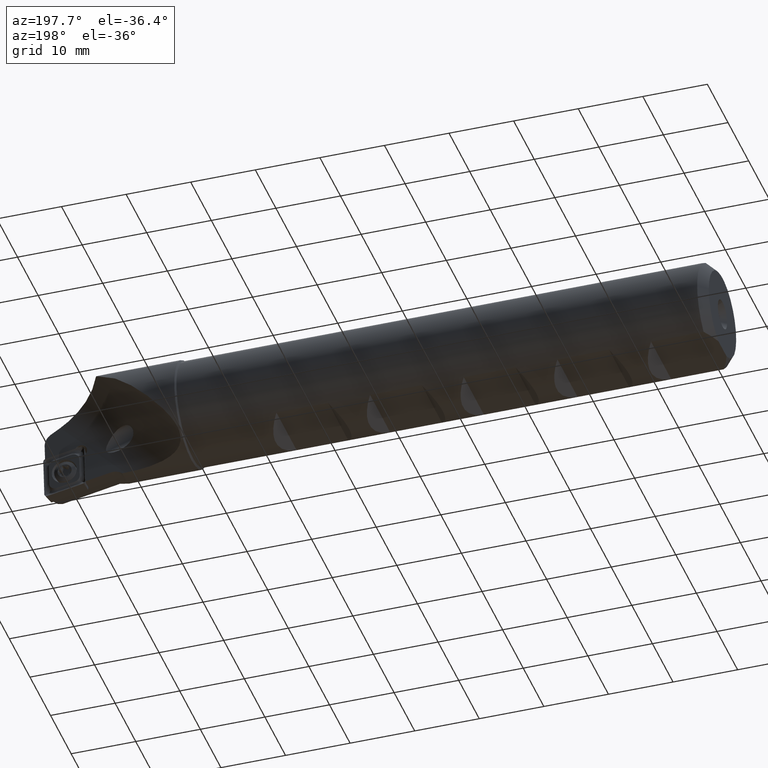
[diagram: clean part render]
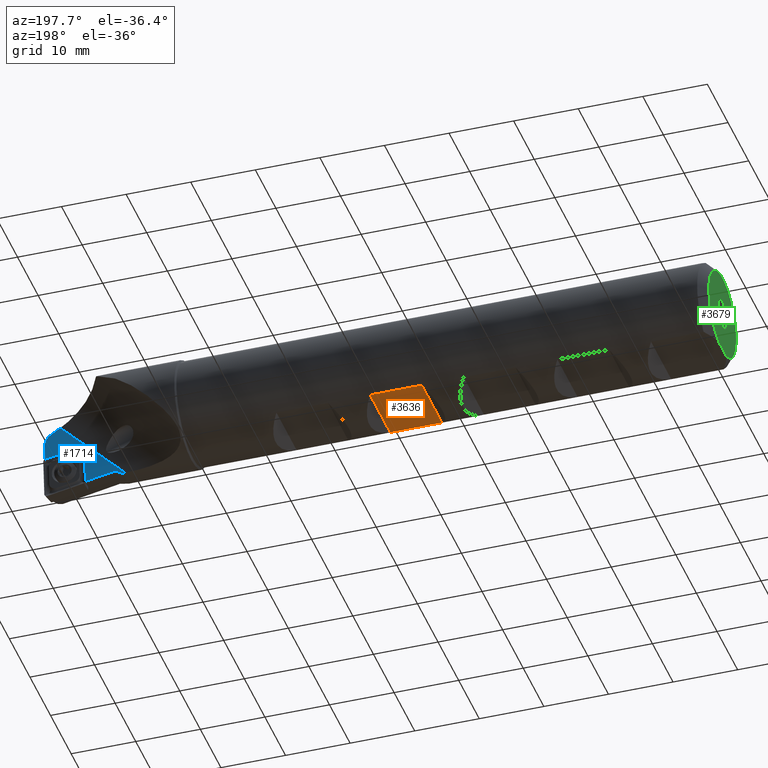
[diagram: same view with three faces highlighted in distinct colors, each labeled with its STEP entity id]
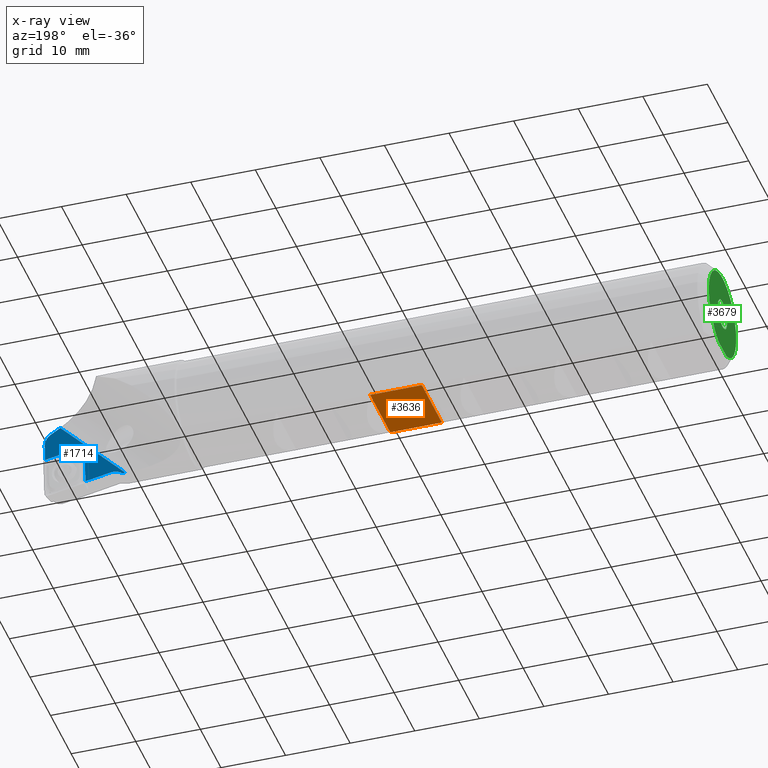
[diagram: x-ray of the same camera — body ghosted, the three highlighted faces saturated]
A machine part, auxiliary view with three faces highlighted in distinct colors.
The next image is the same camera in x-ray (body ghosted, the three faces saturated) — at least one of them is partly hidden behind the body in this view.
Their STEP definitions:

[orange] entity #3636 — the highlighted planar face has unit normal (-0, 0, 1).
#5 = DIRECTION ( 'NONE',  ( 1.000000000000000000, 8.847089727481710000E-017, 5.551115123125779000E-017 ) ) ;
#6 = CARTESIAN_POINT ( 'NONE',  ( -3.175455607189903200, 4.891942354525449200, -6.330000000000004500 ) ) ;
#19 = PLANE ( 'NONE',  #2520 ) ;
#23 = ORIENTED_EDGE ( 'NONE', *, *, #3186, .F. ) ;
#25 = VERTEX_POINT ( 'NONE', #2370 ) ;
#36 = ORIENTED_EDGE ( 'NONE', *, *, #534, .F. ) ;
#37 = CARTESIAN_POINT ( 'NONE',  ( 45.00000000000004300, -10.00000000000000400, -6.330000000000001800 ) ) ;
#87 = LINE ( 'NONE', #1352, #1269 ) ;
#142 = LINE ( 'NONE', #6, #2165 ) ;
#259 = CARTESIAN_POINT ( 'NONE',  ( 45.00000000000004300, -10.00000000000000400, -6.330000000000001800 ) ) ;
#408 = EDGE_CURVE ( 'NONE', #2882, #2448, #3175, .T. ) ;
#480 = CARTESIAN_POINT ( 'NONE',  ( -3.175455607189916900, -4.891942354525453700, -6.329999999999999200 ) ) ;
#525 = DIRECTION ( 'NONE',  ( 9.367506770274752100E-017, 1.000000000000000000, -2.341876692568688000E-017 ) ) ;
#534 = EDGE_CURVE ( 'NONE', #553, #2448, #142, .T. ) ;
#553 = VERTEX_POINT ( 'NONE', #2376 ) ;
#761 = DIRECTION ( 'NONE',  ( 1.000000000000000000, 8.847089727481710000E-017, 5.551115123125779000E-017 ) ) ;
#949 = VECTOR ( 'NONE', #761, 1000.000000000000000 ) ;
#1054 = CARTESIAN_POINT ( 'NONE',  ( 45.00000000000002800, 4.891942354525459900, -6.330000000000001800 ) ) ;
#1188 = DIRECTION ( 'NONE',  ( -5.551115123125779000E-017, 1.951563910473906100E-017, 1.000000000000000000 ) ) ;
#1269 = VECTOR ( 'NONE', #3437, 1000.000000000000000 ) ;
#1352 = CARTESIAN_POINT ( 'NONE',  ( 53.00000000000005000, -9.999999999999996400, -6.329999999999996500 ) ) ;
#1514 = EDGE_CURVE ( 'NONE', #25, #553, #87, .T. ) ;
#2074 = DIRECTION ( 'NONE',  ( -1.000000000000000000, -8.847089727481710000E-017, -5.551115123125779000E-017 ) ) ;
#2165 = VECTOR ( 'NONE', #2074, 1000.000000000000000 ) ;
#2205 = EDGE_LOOP ( 'NONE', ( #2744, #23, #3253, #36 ) ) ;
#2370 = CARTESIAN_POINT ( 'NONE',  ( 53.00000000000005700, -4.891942354525447500, -6.329999999999993000 ) ) ;
#2376 = CARTESIAN_POINT ( 'NONE',  ( 53.00000000000005000, 4.891942354525455400, -6.329999999999994700 ) ) ;
#2399 = VECTOR ( 'NONE', #525, 1000.000000000000000 ) ;
#2448 = VERTEX_POINT ( 'NONE', #1054 ) ;
#2520 = AXIS2_PLACEMENT_3D ( 'NONE', #37, #1188, #5 ) ;
#2744 = ORIENTED_EDGE ( 'NONE', *, *, #1514, .F. ) ;
#2835 = FACE_OUTER_BOUND ( 'NONE', #2205, .T. ) ;
#2882 = VERTEX_POINT ( 'NONE', #2902 ) ;
#2902 = CARTESIAN_POINT ( 'NONE',  ( 45.00000000000004300, -4.891942354525448300, -6.330000000000001800 ) ) ;
#3175 = LINE ( 'NONE', #259, #2399 ) ;
#3186 = EDGE_CURVE ( 'NONE', #2882, #25, #3299, .T. ) ;
#3253 = ORIENTED_EDGE ( 'NONE', *, *, #408, .T. ) ;
#3299 = LINE ( 'NONE', #480, #949 ) ;
#3437 = DIRECTION ( 'NONE',  ( 9.367506770274752100E-017, 1.000000000000000000, -2.341876692568688000E-017 ) ) ;
#3636 = ADVANCED_FACE ( 'NONE', ( #2835 ), #19, .F. ) ;

[blue] entity #1714 — the highlighted planar face has unit normal (0, -0.9962, 0.0872).
#9 = VERTEX_POINT ( 'NONE', #2684 ) ;
#26 = CARTESIAN_POINT ( 'NONE',  ( 93.50115917782437700, -0.02771815562138420600, -7.897077319357218400 ) ) ;
#31 =( BOUNDED_CURVE ( )  B_SPLINE_CURVE ( 3, ( #654, #1249, #2996, #105 ),
 .UNSPECIFIED., .F., .F. ) 
 B_SPLINE_CURVE_WITH_KNOTS ( ( 4, 4 ),
 ( 5.763884693139985400, 6.802485921219241200 ),
 .UNSPECIFIED. ) 
 CURVE ( )  GEOMETRIC_REPRESENTATION_ITEM ( )  RATIONAL_B_SPLINE_CURVE ( ( 1.000000000000000000, 0.9121109855992493000, 0.9121109855992493000, 1.000000000000000000 ) ) 
 REPRESENTATION_ITEM ( '' )  );
#39 = LINE ( 'NONE', #2647, #718 ) ;
#78 = VERTEX_POINT ( 'NONE', #3579 ) ;
#91 = EDGE_LOOP ( 'NONE', ( #657, #1536, #505, #1375, #1299, #2964, #1627, #125, #683, #1337 ) ) ;
#105 = CARTESIAN_POINT ( 'NONE',  ( 104.7754430878195300, 0.5711941621340251900, -1.051478202645317800 ) ) ;
#125 = ORIENTED_EDGE ( 'NONE', *, *, #1356, .T. ) ;
#279 = CARTESIAN_POINT ( 'NONE',  ( 93.94025455414801200, -0.01466345982893628800, -7.747861463652946600 ) ) ;
#296 = B_SPLINE_CURVE_WITH_KNOTS ( 'NONE', 3,
 ( #3238, #1977, #1437, #3791, #279, #2628, #26, #2065, #2540, #782 ),
 .UNSPECIFIED., .F., .F.,
 ( 4, 2, 2, 2, 4 ),
 ( 0.0000000000000000000, 0.0004629460840783183600, 0.0009258921681566367200, 0.001388838252234955000, 0.001851784336313273400 ),
 .UNSPECIFIED. ) ;
#354 = CARTESIAN_POINT ( 'NONE',  ( 99.25805041359461700, 0.3904818827677607500, -3.117029007552766900 ) ) ;
#394 = LINE ( 'NONE', #3061, #994 ) ;
#413 = DIRECTION ( 'NONE',  ( 3.885780586188046400E-016, -0.08715574274766141300, -0.9961946980917453200 ) ) ;
#505 = ORIENTED_EDGE ( 'NONE', *, *, #3482, .T. ) ;
#540 = LINE ( 'NONE', #2172, #3267 ) ;
#654 = CARTESIAN_POINT ( 'NONE',  ( 103.7828969361782200, 0.7210271174023309400, 0.6611203127486414700 ) ) ;
#657 = ORIENTED_EDGE ( 'NONE', *, *, #1539, .T. ) ;
#683 = ORIENTED_EDGE ( 'NONE', *, *, #3669, .F. ) ;
#718 = VECTOR ( 'NONE', #1781, 1000.000000000000000 ) ;
#719 = AXIS2_PLACEMENT_3D ( 'NONE', #354, #1530, #961 ) ;
#775 = LINE ( 'NONE', #2263, #2475 ) ;
#782 = CARTESIAN_POINT ( 'NONE',  ( 92.99421829504814200, -0.05857669549425643900, -8.249792044090764200 ) ) ;
#812 = DIRECTION ( 'NONE',  ( -4.163336342344335500E-016, -0.08715574274766148300, -0.9961946980917452100 ) ) ;
#961 = DIRECTION ( 'NONE',  ( 0.0000000000000000000, -0.08715574274766137200, -0.9961946980917453200 ) ) ;
#973 = DIRECTION ( 'NONE',  ( -5.551115123125778400E-017, -0.08715574274766139900, -0.9961946980917452100 ) ) ;
#994 = VECTOR ( 'NONE', #3392, 1000.000000000000100 ) ;
#1081 = VECTOR ( 'NONE', #812, 1000.000000000000100 ) ;
#1134 = EDGE_CURVE ( 'NONE', #2241, #3530, #540, .T. ) ;
#1145 = CARTESIAN_POINT ( 'NONE',  ( 98.67455691218062000, -0.07475301075550412600, -8.434688173593087900 ) ) ;
#1236 = VERTEX_POINT ( 'NONE', #3084 ) ;
#1249 = CARTESIAN_POINT ( 'NONE',  ( 104.4127145137344300, 0.6893350801205315700, 0.2988786690366037600 ) ) ;
#1299 = ORIENTED_EDGE ( 'NONE', *, *, #2179, .T. ) ;
#1337 = ORIENTED_EDGE ( 'NONE', *, *, #1470, .F. ) ;
#1356 = EDGE_CURVE ( 'NONE', #3350, #3204, #296, .T. ) ;
#1375 = ORIENTED_EDGE ( 'NONE', *, *, #3207, .T. ) ;
#1377 = PLANE ( 'NONE',  #3469 ) ;
#1405 = LINE ( 'NONE', #2305, #3793 ) ;
#1437 = CARTESIAN_POINT ( 'NONE',  ( 94.40461640115823600, -0.01073446061166435900, -7.702952797102002000 ) ) ;
#1470 = EDGE_CURVE ( 'NONE', #78, #2926, #394, .T. ) ;
#1530 = DIRECTION ( 'NONE',  ( 1.850713738856097000E-015, -0.9961946980917453200, 0.08715574274766135800 ) ) ;
#1536 = ORIENTED_EDGE ( 'NONE', *, *, #2151, .T. ) ;
#1539 = EDGE_CURVE ( 'NONE', #78, #9, #775, .T. ) ;
#1599 = VERTEX_POINT ( 'NONE', #2275 ) ;
#1627 = ORIENTED_EDGE ( 'NONE', *, *, #2602, .T. ) ;
#1644 = LINE ( 'NONE', #3747, #1081 ) ;
#1687 = DIRECTION ( 'NONE',  ( -0.9848077530122073500, 0.01513443590133747900, 0.1729873939250936300 ) ) ;
#1714 = ADVANCED_FACE ( 'NONE', ( #2244 ), #1377, .F. ) ;
#1781 = DIRECTION ( 'NONE',  ( 1.000000000000000000, 8.847089727481710000E-017, 5.551115123125779000E-017 ) ) ;
#1977 = CARTESIAN_POINT ( 'NONE',  ( 94.55888225781433200, -0.01150369731666824700, -7.711745212873367400 ) ) ;
#2065 = CARTESIAN_POINT ( 'NONE',  ( 93.23085622819888800, -0.04129315774193689100, -8.052240303605220400 ) ) ;
#2151 = EDGE_CURVE ( 'NONE', #9, #1599, #31, .T. ) ;
#2164 = CARTESIAN_POINT ( 'NONE',  ( 98.67455691218063400, 0.3197011520270330300, -3.926056461946886100 ) ) ;
#2172 = CARTESIAN_POINT ( 'NONE',  ( 98.67455691218063400, 0.6434795553576991800, -0.2252523773729883400 ) ) ;
#2179 = EDGE_CURVE ( 'NONE', #3160, #2241, #2987, .T. ) ;
#2226 = CARTESIAN_POINT ( 'NONE',  ( 100.1591529103138400, 0.4282731485383709000, -2.685072863207201200 ) ) ;
#2241 = VERTEX_POINT ( 'NONE', #2164 ) ;
#2244 = FACE_OUTER_BOUND ( 'NONE', #91, .T. ) ;
#2263 = CARTESIAN_POINT ( 'NONE',  ( 113.3638823464906000, 0.2389177612326180100, -4.849414843921693800 ) ) ;
#2275 = CARTESIAN_POINT ( 'NONE',  ( 104.7754430878195300, 0.5711941621340251900, -1.051478202645317800 ) ) ;
#2305 = CARTESIAN_POINT ( 'NONE',  ( 115.1425989588483200, 0.1980089136061309000, -5.317005111938290600 ) ) ;
#2435 = DIRECTION ( 'NONE',  ( 1.850713738856097000E-015, -0.9961946980917453200, 0.08715574274766141300 ) ) ;
#2441 = CARTESIAN_POINT ( 'NONE',  ( 92.49252308485755200, -0.05857669549434209300, -8.249792044090865400 ) ) ;
#2475 = VECTOR ( 'NONE', #2584, 1000.000000000000100 ) ;
#2476 = VECTOR ( 'NONE', #3242, 999.9999999999998900 ) ;
#2540 = CARTESIAN_POINT ( 'NONE',  ( 93.10700208745696200, -0.04932517225661264800, -8.144046649604465700 ) ) ;
#2584 = DIRECTION ( 'NONE',  ( 0.8660254037844399300, -0.04357787137382872900, -0.4980973490458703900 ) ) ;
#2602 = EDGE_CURVE ( 'NONE', #3530, #3350, #2951, .T. ) ;
#2628 = CARTESIAN_POINT ( 'NONE',  ( 93.64428234003924000, -0.02236666338165655500, -7.835909483159344500 ) ) ;
#2647 = CARTESIAN_POINT ( 'NONE',  ( -3.175455607189910300, -0.05857669549445810400, -8.249792044090869000 ) ) ;
#2684 = CARTESIAN_POINT ( 'NONE',  ( 103.7828969361782200, 0.7210271174023309400, 0.6611203127486414700 ) ) ;
#2765 = CARTESIAN_POINT ( 'NONE',  ( 94.71303954189268400, -0.01387277242544462900, -7.738823865276049900 ) ) ;
#2926 = VERTEX_POINT ( 'NONE', #2441 ) ;
#2931 = CARTESIAN_POINT ( 'NONE',  ( 106.0383287015331000, -0.1879187852908458200, -9.728178895414638200 ) ) ;
#2951 = LINE ( 'NONE', #2931, #2476 ) ;
#2964 = ORIENTED_EDGE ( 'NONE', *, *, #1134, .T. ) ;
#2987 = CIRCLE ( 'NONE', #719, 1.000000000000002000 ) ;
#2996 = CARTESIAN_POINT ( 'NONE',  ( 104.7754430878195300, 0.6345782366976286900, -0.3269949152212732700 ) ) ;
#3061 = CARTESIAN_POINT ( 'NONE',  ( 108.2508540501084300, 1.320098620054807000, 7.508538921159931200 ) ) ;
#3084 = CARTESIAN_POINT ( 'NONE',  ( 104.7754430878195400, 0.3573304213109956300, -3.495951945917685800 ) ) ;
#3160 = VERTEX_POINT ( 'NONE', #2226 ) ;
#3169 = CARTESIAN_POINT ( 'NONE',  ( 116.0438418463277900, 0.6434795553577338200, -0.2252523773729796500 ) ) ;
#3204 = VERTEX_POINT ( 'NONE', #3393 ) ;
#3207 = EDGE_CURVE ( 'NONE', #1236, #3160, #1405, .T. ) ;
#3238 = CARTESIAN_POINT ( 'NONE',  ( 94.71303954189268400, -0.01387277242544462900, -7.738823865276049900 ) ) ;
#3242 = DIRECTION ( 'NONE',  ( -0.9848077530122073500, 0.01513443590133887700, 0.1729873939250936900 ) ) ;
#3267 = VECTOR ( 'NONE', #413, 999.9999999999998900 ) ;
#3350 = VERTEX_POINT ( 'NONE', #2765 ) ;
#3392 = DIRECTION ( 'NONE',  ( -0.7057575568079539300, -0.06174578541845273500, -0.7057575568079496000 ) ) ;
#3393 = CARTESIAN_POINT ( 'NONE',  ( 92.99421829504814200, -0.05857669549425643900, -8.249792044090764200 ) ) ;
#3469 = AXIS2_PLACEMENT_3D ( 'NONE', #3169, #2435, #973 ) ;
#3482 = EDGE_CURVE ( 'NONE', #1599, #1236, #1644, .T. ) ;
#3530 = VERTEX_POINT ( 'NONE', #1145 ) ;
#3579 = CARTESIAN_POINT ( 'NONE',  ( 102.2722747452705600, 0.7970407068907632300, 1.529959616322085400 ) ) ;
#3669 = EDGE_CURVE ( 'NONE', #2926, #3204, #39, .T. ) ;
#3747 = CARTESIAN_POINT ( 'NONE',  ( 104.7754430878195300, 0.6434795553577106200, -0.2252523773729814000 ) ) ;
#3791 = CARTESIAN_POINT ( 'NONE',  ( 94.09587532771811900, -0.01228095008572323600, -7.720629252676156200 ) ) ;
#3793 = VECTOR ( 'NONE', #1687, 1000.000000000000000 ) ;

[green] entity #3679 — the highlighted planar face has unit normal (1, 0, -0).
#156 = CARTESIAN_POINT ( 'NONE',  ( 6.938893903907228400E-015, -1.954923272151638700, -6.330000000000001800 ) ) ;
#172 = EDGE_CURVE ( 'NONE', #576, #576, #1233, .T. ) ;
#435 = DIRECTION ( 'NONE',  ( 2.775557561562890100E-017, 1.951563910473907100E-017, 1.000000000000000000 ) ) ;
#489 = VERTEX_POINT ( 'NONE', #886 ) ;
#576 = VERTEX_POINT ( 'NONE', #694 ) ;
#680 = DIRECTION ( 'NONE',  ( 2.775557561562890100E-017, 1.951563910473907100E-017, 1.000000000000000000 ) ) ;
#694 = CARTESIAN_POINT ( 'NONE',  ( 6.245004513516505500E-017, 4.391018798566292300E-017, 2.250000000000000900 ) ) ;
#886 = CARTESIAN_POINT ( 'NONE',  ( 0.0000000000000000000, 1.954923272151637400, -6.330000000000001800 ) ) ;
#1233 = CIRCLE ( 'NONE', #3326, 2.250000000000000900 ) ;
#1270 = LINE ( 'NONE', #1612, #2345 ) ;
#1298 = CARTESIAN_POINT ( 'NONE',  ( 0.0000000000000000000, 0.0000000000000000000, 0.0000000000000000000 ) ) ;
#1612 = CARTESIAN_POINT ( 'NONE',  ( -1.387778780781445700E-014, 2.250000000000001800, -6.330000000000000100 ) ) ;
#1798 = PLANE ( 'NONE',  #2713 ) ;
#1856 = EDGE_LOOP ( 'NONE', ( #3674 ) ) ;
#2051 = FACE_OUTER_BOUND ( 'NONE', #2515, .T. ) ;
#2225 = ORIENTED_EDGE ( 'NONE', *, *, #3723, .T. ) ;
#2284 = CIRCLE ( 'NONE', #3475, 6.625000000000008000 ) ;
#2345 = VECTOR ( 'NONE', #3646, 1000.000000000000000 ) ;
#2410 = DIRECTION ( 'NONE',  ( -1.000000000000000000, -8.847089727481710000E-017, -5.551115123125779000E-017 ) ) ;
#2413 = EDGE_CURVE ( 'NONE', #489, #2700, #1270, .T. ) ;
#2418 = CARTESIAN_POINT ( 'NONE',  ( 0.0000000000000000000, 0.0000000000000000000, 0.0000000000000000000 ) ) ;
#2434 = DIRECTION ( 'NONE',  ( 1.000000000000000000, 8.847089727481710000E-017, -2.775557561562890400E-017 ) ) ;
#2515 = EDGE_LOOP ( 'NONE', ( #2225, #2879 ) ) ;
#2700 = VERTEX_POINT ( 'NONE', #156 ) ;
#2713 = AXIS2_PLACEMENT_3D ( 'NONE', #2979, #2434, #3035 ) ;
#2879 = ORIENTED_EDGE ( 'NONE', *, *, #2413, .T. ) ;
#2979 = CARTESIAN_POINT ( 'NONE',  ( 0.0000000000000000000, 2.249999999999999100, 8.673617379884035500E-016 ) ) ;
#3035 = DIRECTION ( 'NONE',  ( -2.775557561562890100E-017, -1.951563910473907100E-017, -1.000000000000000000 ) ) ;
#3064 = FACE_BOUND ( 'NONE', #1856, .T. ) ;
#3092 = DIRECTION ( 'NONE',  ( -1.000000000000000000, -8.847089727481710000E-017, -5.551115123125779000E-017 ) ) ;
#3326 = AXIS2_PLACEMENT_3D ( 'NONE', #1298, #3092, #435 ) ;
#3475 = AXIS2_PLACEMENT_3D ( 'NONE', #2418, #2410, #680 ) ;
#3646 = DIRECTION ( 'NONE',  ( -9.367506770274752100E-017, -1.000000000000000000, 2.341876692568688000E-017 ) ) ;
#3674 = ORIENTED_EDGE ( 'NONE', *, *, #172, .F. ) ;
#3679 = ADVANCED_FACE ( 'NONE', ( #3064, #2051 ), #1798, .F. ) ;
#3723 = EDGE_CURVE ( 'NONE', #2700, #489, #2284, .T. ) ;